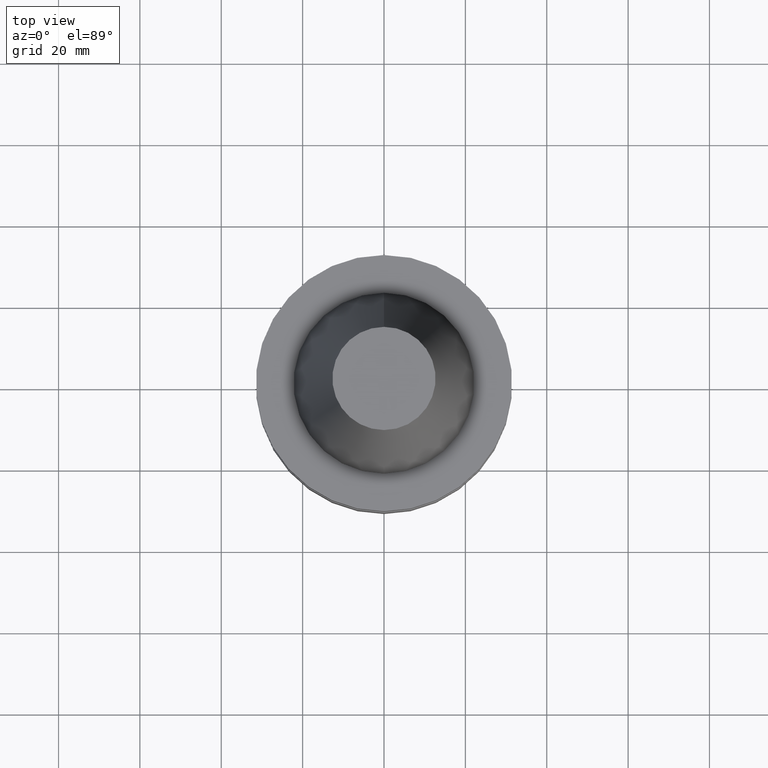
[diagram: clean part render]
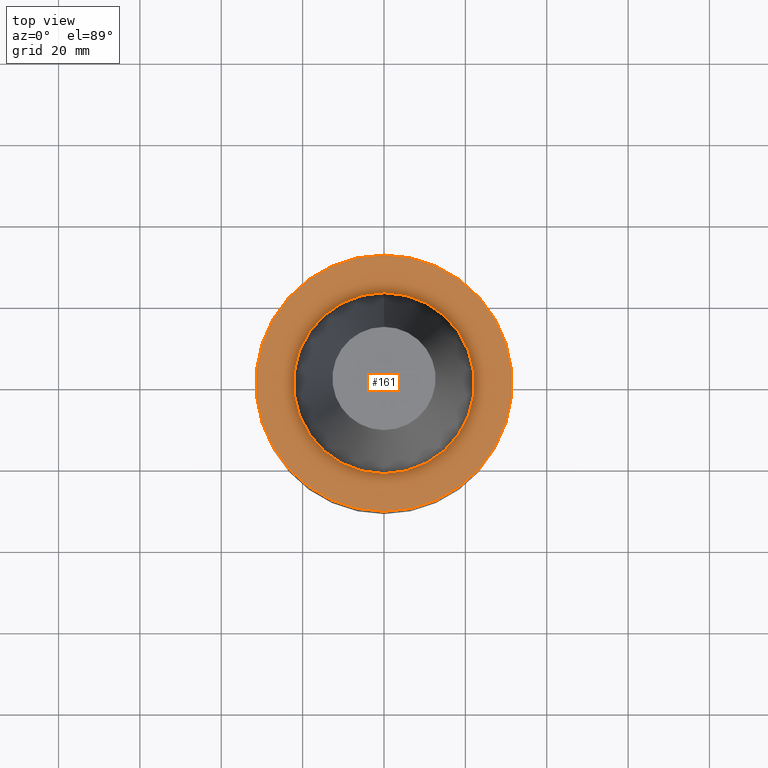
[diagram: same view with one face highlighted and labeled with its STEP entity id]
A machine part, top view. The second image highlights one B-rep face of the part: STEP entity #161.
In plain terms, the highlighted planar face has unit normal (-0, -0, 1).
Its self-contained STEP definition (entity closure, byte-faithful):
#82=EDGE_CURVE('Unnamed[1]',#209,#209,#210,.T.);
#150=EDGE_CURVE('Unnamed[1]',#315,#315,#316,.T.);
#161=ADVANCED_FACE('Unnamed[1]',(#332,#333),#334,.T.);
#209=VERTEX_POINT('',#382);
#210=CIRCLE('',#383,31.4999999999996);
#315=VERTEX_POINT('',#513);
#316=CIRCLE('',#514,22.225);
#332=FACE_OUTER_BOUND('',#534,.T.);
#333=FACE_BOUND('',#535,.T.);
#334=PLANE('',#536);
#382=CARTESIAN_POINT('',(6.12323399573568E-017,31.4999999999997,-0.999999999999825));
#383=AXIS2_PLACEMENT_3D('',#572,#573,#574);
#513=CARTESIAN_POINT('',(6.12323399573622E-017,22.2250000000001,-0.999999999999912));
#514=AXIS2_PLACEMENT_3D('',#691,#692,#693);
#534=EDGE_LOOP('',(#710));
#535=EDGE_LOOP('',(#711));
#536=AXIS2_PLACEMENT_3D('',#712,#713,#714);
#572=CARTESIAN_POINT('',(6.12323399573563E-017,4.94826382398961E-014,-0.999999999999815));
#573=DIRECTION('',(6.12323399573677E-017,-4.10767166376342E-016,-1.0));
#574=DIRECTION('',(2.03250820441117E-032,1.0,-4.10767166376342E-016));
#691=CARTESIAN_POINT('',(6.12323399573616E-017,4.94826382398961E-014,-0.999999999999901));
#692=DIRECTION('',(6.12323399573677E-017,-4.10767166376342E-016,-1.0));
#693=DIRECTION('',(2.03250820441117E-032,1.0,-4.10767166376342E-016));
#710=ORIENTED_EDGE('',*,*,#82,.F.);
#711=ORIENTED_EDGE('',*,*,#150,.T.);
#712=CARTESIAN_POINT('',(6.12323399573595E-017,26.8624999999999,-0.999999999999869));
#713=DIRECTION('',(-6.12323399573677E-017,-9.35138060429241E-015,1.0));
#714=DIRECTION('',(5.77434068963536E-031,-1.0,-9.35138060429241E-015));